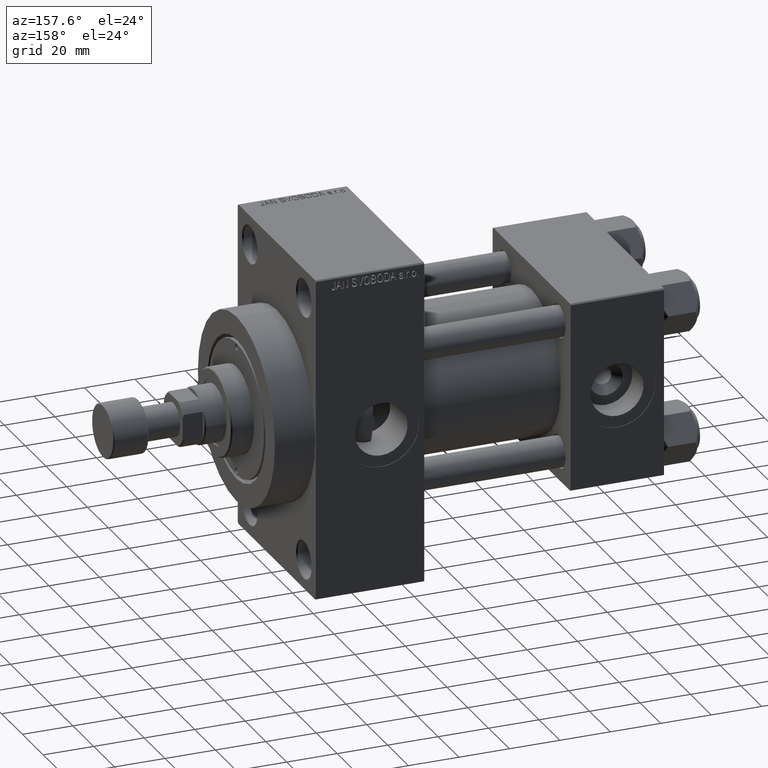
[diagram: clean part render]
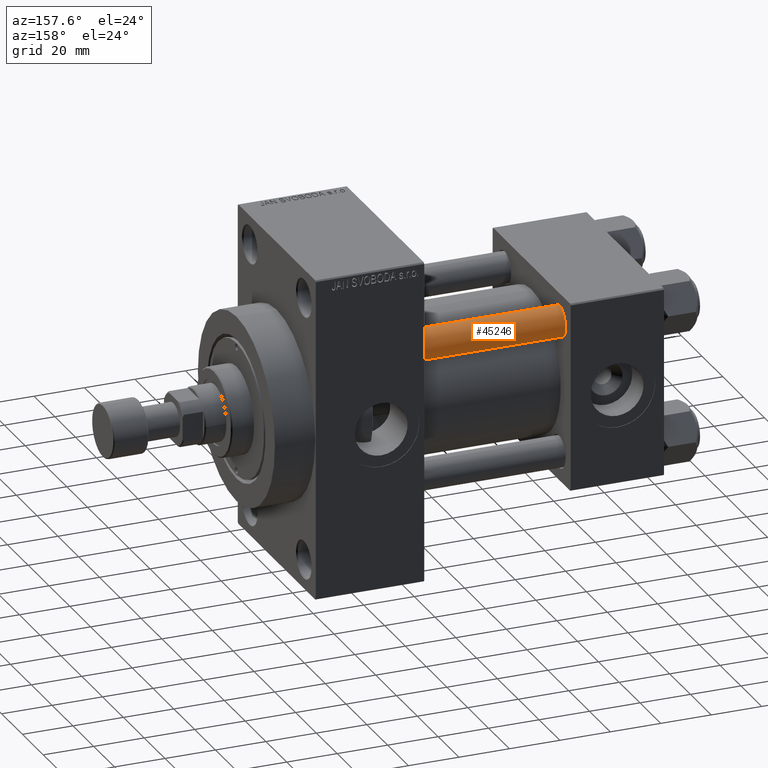
[diagram: same view with one face highlighted and labeled with its STEP entity id]
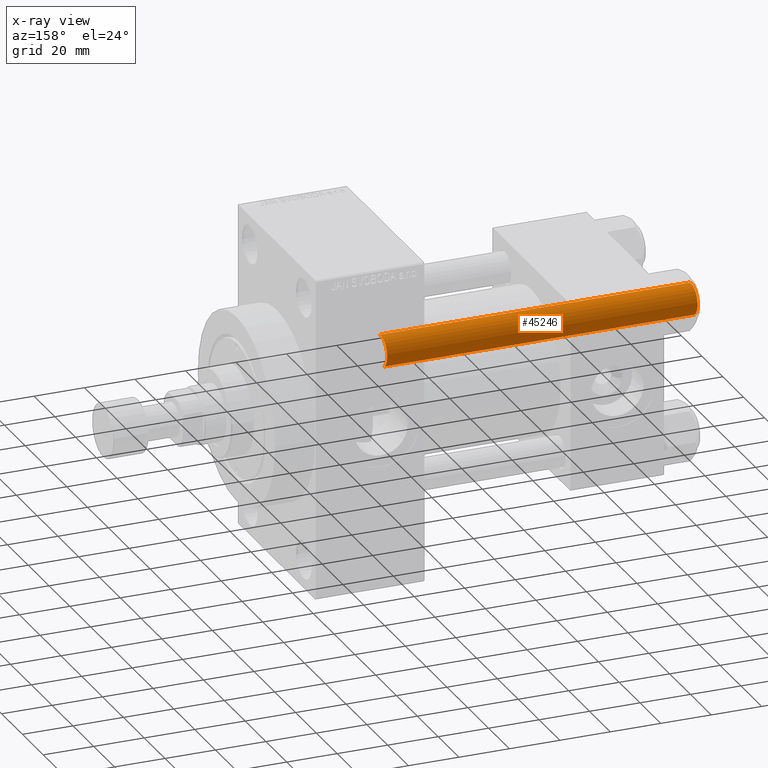
[diagram: x-ray of the same camera — body ghosted, the highlighted face saturated]
A machine part, auxiliary view. The second image highlights one B-rep face of the part: STEP entity #45246.
The next image is the same camera in x-ray: the body ghosted, the highlighted face saturated — about 0% of this face is hidden behind the body in this view.
In plain terms, the highlighted cylindrical surface (edge-blend (fillet) strip) has radius 6 mm, axis along (-1, -0, 0).
Its self-contained STEP definition (entity closure, byte-faithful):
#287 = DIRECTION ( 'NONE',  ( 0.000000000000000000, 0.000000000000000000, -1.000000000000000000 ) ) ;
#3246 = DIRECTION ( 'NONE',  ( -1.000000000000000000, 0.000000000000000000, 0.000000000000000000 ) ) ;
#3969 = ORIENTED_EDGE ( 'NONE', *, *, #42413, .T. ) ;
#6171 = CYLINDRICAL_SURFACE ( 'NONE', #13430, 6.000000000000000888 ) ;
#8758 = AXIS2_PLACEMENT_3D ( 'NONE', #35510, #35741, #17364 ) ;
#10453 = DIRECTION ( 'NONE',  ( 1.000000000000000000, 0.000000000000000000, 0.000000000000000000 ) ) ;
#13430 = AXIS2_PLACEMENT_3D ( 'NONE', #47250, #36140, #3246 ) ;
#17364 = DIRECTION ( 'NONE',  ( 1.000000000000000000, 0.000000000000000000, 0.000000000000000000 ) ) ;
#17525 = FACE_OUTER_BOUND ( 'NONE', #23679, .T. ) ;
#19760 = EDGE_CURVE ( 'NONE', #46135, #34997, #21623, .T. ) ;
#20148 = CARTESIAN_POINT ( 'NONE',  ( 6.000000000000000888, 7.347880794884120722E-16, 123.5000000000000426 ) ) ;
#21623 = LINE ( 'NONE', #28890, #31501 ) ;
#21865 = DIRECTION ( 'NONE',  ( -0.000000000000000000, -0.000000000000000000, -1.000000000000000000 ) ) ;
#22690 = VECTOR ( 'NONE', #27615, 1000.000000000000000 ) ;
#23679 = EDGE_LOOP ( 'NONE', ( #28322, #3969, #37349, #46303 ) ) ;
#25867 = CARTESIAN_POINT ( 'NONE',  ( -6.000000000000000888, 0.000000000000000000, 0.4999999999999865663 ) ) ;
#27615 = DIRECTION ( 'NONE',  ( -0.000000000000000000, -0.000000000000000000, -1.000000000000000000 ) ) ;
#28322 = ORIENTED_EDGE ( 'NONE', *, *, #29187, .T. ) ;
#28890 = CARTESIAN_POINT ( 'NONE',  ( -6.000000000000000888, 0.000000000000000000, 124.0000000000000000 ) ) ;
#29187 = EDGE_CURVE ( 'NONE', #46135, #40558, #33198, .T. ) ;
#29584 = CIRCLE ( 'NONE', #8758, 6.000000000000000888 ) ;
#30905 = AXIS2_PLACEMENT_3D ( 'NONE', #33180, #287, #10453 ) ;
#31501 = VECTOR ( 'NONE', #21865, 1000.000000000000000 ) ;
#33180 = CARTESIAN_POINT ( 'NONE',  ( 0.000000000000000000, 0.000000000000000000, 123.5000000000000426 ) ) ;
#33198 = CIRCLE ( 'NONE', #30905, 6.000000000000000888 ) ;
#34997 = VERTEX_POINT ( 'NONE', #25867 ) ;
#35166 = VERTEX_POINT ( 'NONE', #43240 ) ;
#35510 = CARTESIAN_POINT ( 'NONE',  ( 0.000000000000000000, 0.000000000000000000, 0.4999999999999865663 ) ) ;
#35741 = DIRECTION ( 'NONE',  ( -0.000000000000000000, -0.000000000000000000, 1.000000000000000000 ) ) ;
#36140 = DIRECTION ( 'NONE',  ( -0.000000000000000000, -0.000000000000000000, -1.000000000000000000 ) ) ;
#37349 = ORIENTED_EDGE ( 'NONE', *, *, #41369, .T. ) ;
#39770 = CARTESIAN_POINT ( 'NONE',  ( -6.000000000000000888, 0.000000000000000000, 123.5000000000000426 ) ) ;
#40558 = VERTEX_POINT ( 'NONE', #20148 ) ;
#41369 = EDGE_CURVE ( 'NONE', #35166, #34997, #29584, .T. ) ;
#42413 = EDGE_CURVE ( 'NONE', #40558, #35166, #45993, .T. ) ;
#43073 = CARTESIAN_POINT ( 'NONE',  ( 6.000000000000000888, 7.347880794884120722E-16, 124.0000000000000000 ) ) ;
#43240 = CARTESIAN_POINT ( 'NONE',  ( 6.000000000000000888, 7.347880794884120722E-16, 0.4999999999999865663 ) ) ;
#45246 = ADVANCED_FACE ( 'NONE', ( #17525 ), #6171, .T. ) ;
#45993 = LINE ( 'NONE', #43073, #22690 ) ;
#46135 = VERTEX_POINT ( 'NONE', #39770 ) ;
#46303 = ORIENTED_EDGE ( 'NONE', *, *, #19760, .F. ) ;
#47250 = CARTESIAN_POINT ( 'NONE',  ( 0.000000000000000000, 0.000000000000000000, 124.0000000000000000 ) ) ;